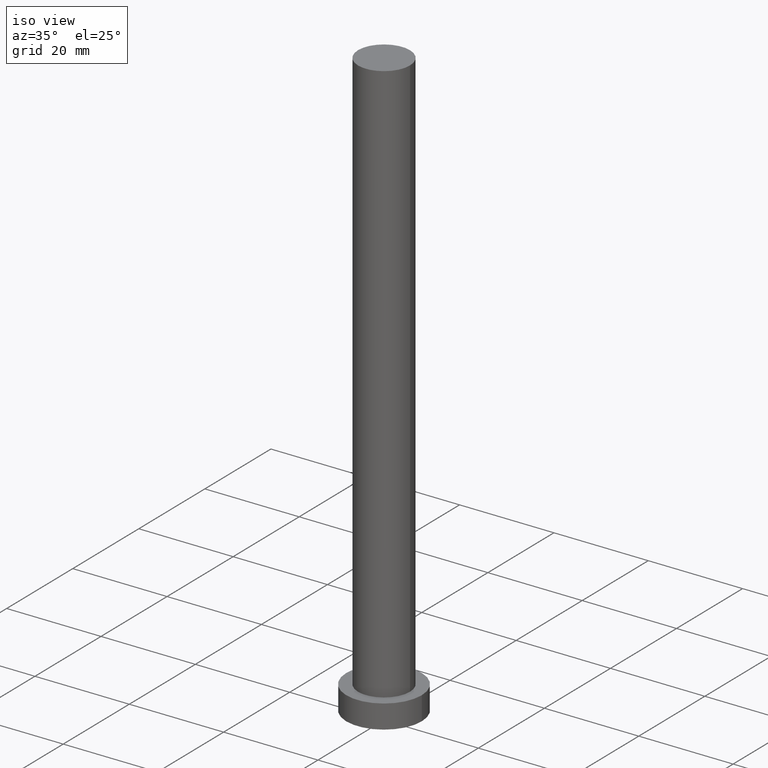
[diagram: clean part render]
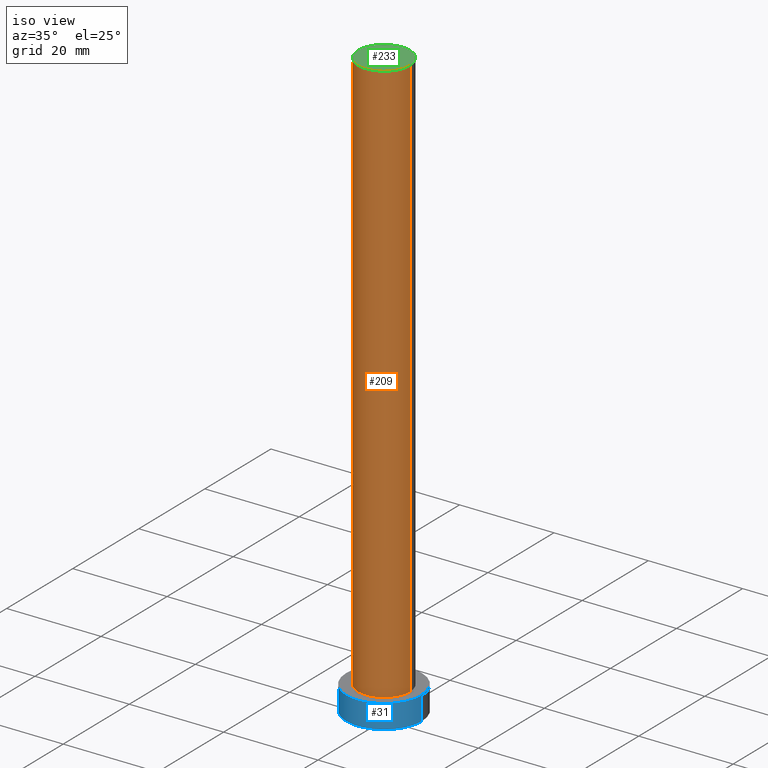
[diagram: same view with three faces highlighted in distinct colors, each labeled with its STEP entity id]
A machine part, iso view with three faces highlighted in distinct colors.
Their STEP definitions:

[orange] entity #209 — the highlighted cylindrical surface (edge-blend (fillet) strip) has radius 5.5 mm, axis along (-0, -0, -1).
#4 = CYLINDRICAL_SURFACE ( 'NONE', #67, 5.500000000000000000 ) ;
#15 = ORIENTED_EDGE ( 'NONE', *, *, #170, .T. ) ;
#18 = CARTESIAN_POINT ( 'NONE',  ( 5.500000000000000000, 6.735557395310442023E-16, 125.0000000000000000 ) ) ;
#24 = VECTOR ( 'NONE', #116, 1000.000000000000000 ) ;
#29 = CARTESIAN_POINT ( 'NONE',  ( 5.500000000000000000, 6.735557395310442023E-16, 5.000000000000000000 ) ) ;
#34 = CARTESIAN_POINT ( 'NONE',  ( -5.500000000000000000, 0.000000000000000000, 125.0000000000000000 ) ) ;
#35 = VERTEX_POINT ( 'NONE', #29 ) ;
#38 = DIRECTION ( 'NONE',  ( -0.000000000000000000, -0.000000000000000000, -1.000000000000000000 ) ) ;
#39 = LINE ( 'NONE', #34, #24 ) ;
#40 = CARTESIAN_POINT ( 'NONE',  ( 5.500000000000000000, 6.735557395310442023E-16, 125.0000000000000000 ) ) ;
#41 = EDGE_CURVE ( 'NONE', #191, #136, #108, .T. ) ;
#44 = DIRECTION ( 'NONE',  ( -0.000000000000000000, -0.000000000000000000, -1.000000000000000000 ) ) ;
#51 = CARTESIAN_POINT ( 'NONE',  ( -5.500000000000000000, 0.000000000000000000, 5.000000000000000000 ) ) ;
#67 = AXIS2_PLACEMENT_3D ( 'NONE', #104, #44, #91 ) ;
#80 = ORIENTED_EDGE ( 'NONE', *, *, #118, .F. ) ;
#91 = DIRECTION ( 'NONE',  ( -1.000000000000000000, 0.000000000000000000, 0.000000000000000000 ) ) ;
#94 = CARTESIAN_POINT ( 'NONE',  ( -5.500000000000000000, 0.000000000000000000, 125.0000000000000000 ) ) ;
#97 = ORIENTED_EDGE ( 'NONE', *, *, #41, .F. ) ;
#99 = VECTOR ( 'NONE', #38, 1000.000000000000000 ) ;
#104 = CARTESIAN_POINT ( 'NONE',  ( 0.000000000000000000, 0.000000000000000000, 125.0000000000000000 ) ) ;
#106 = DIRECTION ( 'NONE',  ( 0.000000000000000000, 0.000000000000000000, 1.000000000000000000 ) ) ;
#108 = CIRCLE ( 'NONE', #183, 5.500000000000000000 ) ;
#109 = FACE_OUTER_BOUND ( 'NONE', #173, .T. ) ;
#116 = DIRECTION ( 'NONE',  ( -0.000000000000000000, -0.000000000000000000, -1.000000000000000000 ) ) ;
#118 = EDGE_CURVE ( 'NONE', #136, #35, #195, .T. ) ;
#119 = ORIENTED_EDGE ( 'NONE', *, *, #196, .T. ) ;
#122 = CARTESIAN_POINT ( 'NONE',  ( 0.000000000000000000, 0.000000000000000000, 5.000000000000000000 ) ) ;
#136 = VERTEX_POINT ( 'NONE', #40 ) ;
#142 = AXIS2_PLACEMENT_3D ( 'NONE', #122, #252, #198 ) ;
#147 = CARTESIAN_POINT ( 'NONE',  ( 0.000000000000000000, 0.000000000000000000, 125.0000000000000000 ) ) ;
#149 = DIRECTION ( 'NONE',  ( 1.000000000000000000, 0.000000000000000000, 0.000000000000000000 ) ) ;
#170 = EDGE_CURVE ( 'NONE', #216, #35, #210, .T. ) ;
#173 = EDGE_LOOP ( 'NONE', ( #80, #97, #119, #15 ) ) ;
#183 = AXIS2_PLACEMENT_3D ( 'NONE', #147, #106, #149 ) ;
#191 = VERTEX_POINT ( 'NONE', #94 ) ;
#195 = LINE ( 'NONE', #18, #99 ) ;
#196 = EDGE_CURVE ( 'NONE', #191, #216, #39, .T. ) ;
#198 = DIRECTION ( 'NONE',  ( 1.000000000000000000, 0.000000000000000000, 0.000000000000000000 ) ) ;
#209 = ADVANCED_FACE ( 'NONE', ( #109 ), #4, .T. ) ;
#210 = CIRCLE ( 'NONE', #142, 5.500000000000000000 ) ;
#216 = VERTEX_POINT ( 'NONE', #51 ) ;
#252 = DIRECTION ( 'NONE',  ( 0.000000000000000000, 0.000000000000000000, 1.000000000000000000 ) ) ;

[blue] entity #31 — the highlighted cylindrical surface (partial cylindrical patch) has radius 8 mm, axis along (-0, -0, -1).
#16 = CARTESIAN_POINT ( 'NONE',  ( 8.000000000000000000, 9.797174393178825657E-16, 5.000000000000000000 ) ) ;
#21 = ORIENTED_EDGE ( 'NONE', *, *, #204, .T. ) ;
#26 = EDGE_CURVE ( 'NONE', #246, #114, #101, .T. ) ;
#28 = AXIS2_PLACEMENT_3D ( 'NONE', #236, #132, #239 ) ;
#31 = ADVANCED_FACE ( 'NONE', ( #219 ), #151, .T. ) ;
#33 = VECTOR ( 'NONE', #85, 1000.000000000000000 ) ;
#55 = VERTEX_POINT ( 'NONE', #167 ) ;
#57 = CARTESIAN_POINT ( 'NONE',  ( -8.000000000000000000, 0.000000000000000000, 5.000000000000000000 ) ) ;
#58 = ORIENTED_EDGE ( 'NONE', *, *, #26, .F. ) ;
#59 = CARTESIAN_POINT ( 'NONE',  ( 8.000000000000000000, 9.797174393178825657E-16, 0.000000000000000000 ) ) ;
#63 = ORIENTED_EDGE ( 'NONE', *, *, #71, .T. ) ;
#71 = EDGE_CURVE ( 'NONE', #55, #218, #73, .T. ) ;
#73 = LINE ( 'NONE', #57, #139 ) ;
#85 = DIRECTION ( 'NONE',  ( -0.000000000000000000, -0.000000000000000000, -1.000000000000000000 ) ) ;
#89 = CIRCLE ( 'NONE', #121, 8.000000000000000000 ) ;
#101 = LINE ( 'NONE', #254, #33 ) ;
#102 = EDGE_CURVE ( 'NONE', #55, #246, #165, .T. ) ;
#114 = VERTEX_POINT ( 'NONE', #59 ) ;
#121 = AXIS2_PLACEMENT_3D ( 'NONE', #186, #129, #163 ) ;
#129 = DIRECTION ( 'NONE',  ( 0.000000000000000000, 0.000000000000000000, 1.000000000000000000 ) ) ;
#132 = DIRECTION ( 'NONE',  ( -0.000000000000000000, -0.000000000000000000, -1.000000000000000000 ) ) ;
#137 = ORIENTED_EDGE ( 'NONE', *, *, #102, .F. ) ;
#139 = VECTOR ( 'NONE', #248, 1000.000000000000000 ) ;
#140 = CARTESIAN_POINT ( 'NONE',  ( 0.000000000000000000, 0.000000000000000000, 5.000000000000000000 ) ) ;
#151 = CYLINDRICAL_SURFACE ( 'NONE', #28, 8.000000000000000000 ) ;
#156 = DIRECTION ( 'NONE',  ( 0.000000000000000000, 0.000000000000000000, 1.000000000000000000 ) ) ;
#158 = EDGE_LOOP ( 'NONE', ( #58, #137, #63, #21 ) ) ;
#163 = DIRECTION ( 'NONE',  ( 1.000000000000000000, 0.000000000000000000, 0.000000000000000000 ) ) ;
#165 = CIRCLE ( 'NONE', #220, 8.000000000000000000 ) ;
#167 = CARTESIAN_POINT ( 'NONE',  ( -8.000000000000000000, 0.000000000000000000, 5.000000000000000000 ) ) ;
#186 = CARTESIAN_POINT ( 'NONE',  ( 0.000000000000000000, 0.000000000000000000, 0.000000000000000000 ) ) ;
#204 = EDGE_CURVE ( 'NONE', #218, #114, #89, .T. ) ;
#218 = VERTEX_POINT ( 'NONE', #247 ) ;
#219 = FACE_OUTER_BOUND ( 'NONE', #158, .T. ) ;
#220 = AXIS2_PLACEMENT_3D ( 'NONE', #140, #156, #228 ) ;
#228 = DIRECTION ( 'NONE',  ( 1.000000000000000000, 0.000000000000000000, 0.000000000000000000 ) ) ;
#236 = CARTESIAN_POINT ( 'NONE',  ( 0.000000000000000000, 0.000000000000000000, 5.000000000000000000 ) ) ;
#239 = DIRECTION ( 'NONE',  ( -1.000000000000000000, 0.000000000000000000, 0.000000000000000000 ) ) ;
#246 = VERTEX_POINT ( 'NONE', #16 ) ;
#247 = CARTESIAN_POINT ( 'NONE',  ( -8.000000000000000000, 0.000000000000000000, 0.000000000000000000 ) ) ;
#248 = DIRECTION ( 'NONE',  ( -0.000000000000000000, -0.000000000000000000, -1.000000000000000000 ) ) ;
#254 = CARTESIAN_POINT ( 'NONE',  ( 8.000000000000000000, 9.797174393178825657E-16, 5.000000000000000000 ) ) ;

[green] entity #233 — the highlighted planar face has unit normal (0, 0, 1).
#27 = DIRECTION ( 'NONE',  ( 1.000000000000000000, 0.000000000000000000, 0.000000000000000000 ) ) ;
#30 = AXIS2_PLACEMENT_3D ( 'NONE', #53, #213, #120 ) ;
#40 = CARTESIAN_POINT ( 'NONE',  ( 5.500000000000000000, 6.735557395310442023E-16, 125.0000000000000000 ) ) ;
#41 = EDGE_CURVE ( 'NONE', #191, #136, #108, .T. ) ;
#50 = EDGE_CURVE ( 'NONE', #136, #191, #178, .T. ) ;
#53 = CARTESIAN_POINT ( 'NONE',  ( 0.000000000000000000, 0.000000000000000000, 125.0000000000000000 ) ) ;
#82 = ORIENTED_EDGE ( 'NONE', *, *, #50, .T. ) ;
#94 = CARTESIAN_POINT ( 'NONE',  ( -5.500000000000000000, 0.000000000000000000, 125.0000000000000000 ) ) ;
#106 = DIRECTION ( 'NONE',  ( 0.000000000000000000, 0.000000000000000000, 1.000000000000000000 ) ) ;
#108 = CIRCLE ( 'NONE', #183, 5.500000000000000000 ) ;
#113 = DIRECTION ( 'NONE',  ( 0.000000000000000000, 0.000000000000000000, 1.000000000000000000 ) ) ;
#120 = DIRECTION ( 'NONE',  ( 1.000000000000000000, 0.000000000000000000, -0.000000000000000000 ) ) ;
#136 = VERTEX_POINT ( 'NONE', #40 ) ;
#147 = CARTESIAN_POINT ( 'NONE',  ( 0.000000000000000000, 0.000000000000000000, 125.0000000000000000 ) ) ;
#149 = DIRECTION ( 'NONE',  ( 1.000000000000000000, 0.000000000000000000, 0.000000000000000000 ) ) ;
#154 = ORIENTED_EDGE ( 'NONE', *, *, #41, .T. ) ;
#155 = FACE_OUTER_BOUND ( 'NONE', #229, .T. ) ;
#169 = CARTESIAN_POINT ( 'NONE',  ( 0.000000000000000000, 0.000000000000000000, 125.0000000000000000 ) ) ;
#178 = CIRCLE ( 'NONE', #193, 5.500000000000000000 ) ;
#183 = AXIS2_PLACEMENT_3D ( 'NONE', #147, #106, #149 ) ;
#191 = VERTEX_POINT ( 'NONE', #94 ) ;
#193 = AXIS2_PLACEMENT_3D ( 'NONE', #169, #113, #27 ) ;
#213 = DIRECTION ( 'NONE',  ( 0.000000000000000000, 0.000000000000000000, 1.000000000000000000 ) ) ;
#229 = EDGE_LOOP ( 'NONE', ( #154, #82 ) ) ;
#230 = PLANE ( 'NONE',  #30 ) ;
#233 = ADVANCED_FACE ( 'NONE', ( #155 ), #230, .T. ) ;